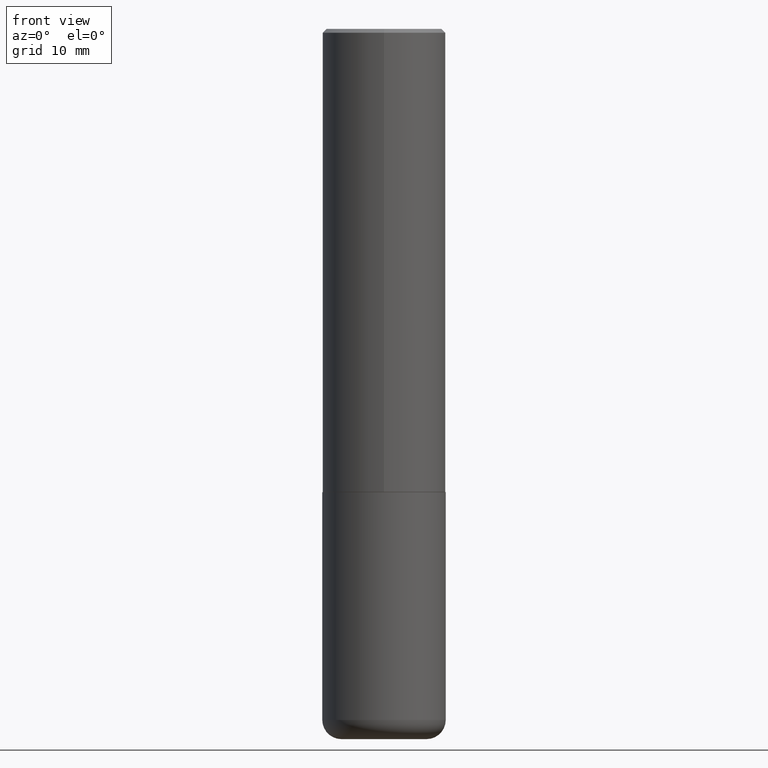
[diagram: clean part render]
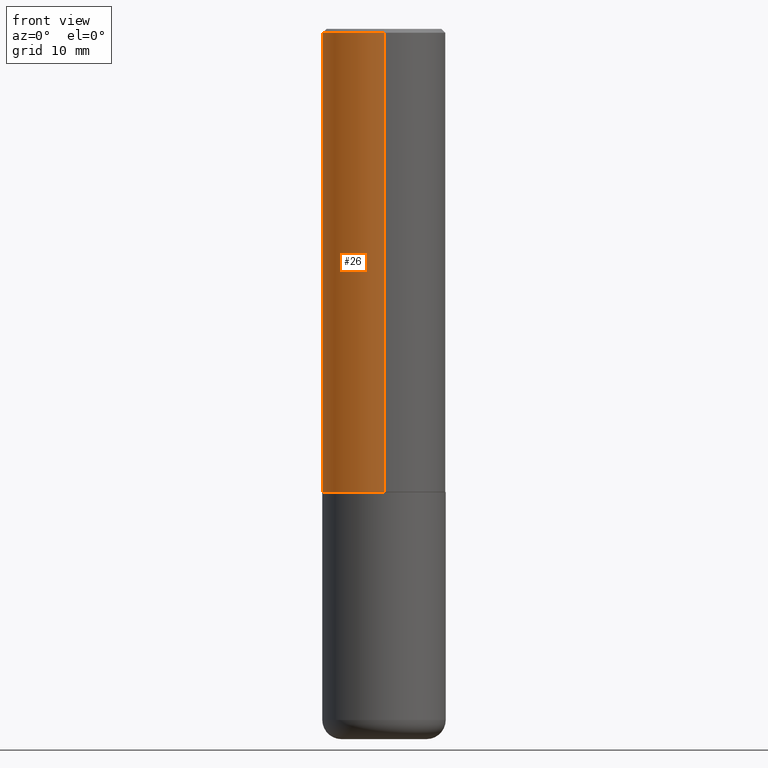
[diagram: same view with one face highlighted and labeled with its STEP entity id]
A machine part, front view. The second image highlights one B-rep face of the part: STEP entity #26.
In plain terms, the highlighted cylindrical surface (partial cylindrical patch) has radius 7.9997 mm, axis along (-0, 0, 1).
Its self-contained STEP definition (entity closure, byte-faithful):
#18 = EDGE_CURVE ( 'NONE', #411, #366, #121, .T. ) ;
#21 = VECTOR ( 'NONE', #153, 39.37007874015748143 ) ;
#23 = CARTESIAN_POINT ( 'NONE',  ( -2.199284095337233467E-15, -0.3149500000000085564, -2.361199999999998411 ) ) ;
#26 = ADVANCED_FACE ( 'NONE', ( #125 ), #254, .T. ) ;
#33 = DIRECTION ( 'NONE',  ( -2.446834136232167376E-29, 3.489526108506037109E-15, 1.000000000000000000 ) ) ;
#36 = AXIS2_PLACEMENT_3D ( 'NONE', #326, #154, #347 ) ;
#40 = EDGE_CURVE ( 'NONE', #366, #313, #224, .T. ) ;
#58 = CARTESIAN_POINT ( 'NONE',  ( 2.237854346276465567E-15, 0.3149499999999920141, -2.361200000000000632 ) ) ;
#59 = DIRECTION ( 'NONE',  ( -6.982962677686264344E-15, -1.000000000000000000, 3.489526108506037109E-15 ) ) ;
#95 = CIRCLE ( 'NONE', #221, 0.3149500000000000077 ) ;
#97 = CARTESIAN_POINT ( 'NONE',  ( 0.000000000000000000, 0.000000000000000000, 0.000000000000000000 ) ) ;
#113 = DIRECTION ( 'NONE',  ( -6.982962677686265922E-15, -1.000000000000000000, 3.483117034309591132E-15 ) ) ;
#117 = CARTESIAN_POINT ( 'NONE',  ( -2.160713844398143363E-15, -0.3149500000000000632, -0.01999999999999896999 ) ) ;
#121 = CIRCLE ( 'NONE', #36, 0.3149500000000002853 ) ;
#125 = FACE_OUTER_BOUND ( 'NONE', #143, .T. ) ;
#139 = AXIS2_PLACEMENT_3D ( 'NONE', #97, #33, #59 ) ;
#143 = EDGE_LOOP ( 'NONE', ( #147, #204, #210, #345 ) ) ;
#147 = ORIENTED_EDGE ( 'NONE', *, *, #307, .F. ) ;
#152 = CARTESIAN_POINT ( 'NONE',  ( 2.237854346276435985E-15, 0.3149500000000001743, -1.099026247873976983E-15 ) ) ;
#153 = DIRECTION ( 'NONE',  ( -2.446834136232167657E-29, 3.489526108506037109E-15, 1.000000000000000000 ) ) ;
#154 = DIRECTION ( 'NONE',  ( -2.446834136232167376E-29, 3.489526108506037109E-15, 1.000000000000000000 ) ) ;
#170 = CARTESIAN_POINT ( 'NONE',  ( 2.199284095337289871E-15, 0.3149499999999999522, -0.02000000000000116615 ) ) ;
#182 = CARTESIAN_POINT ( 'NONE',  ( -2.199284095337290265E-15, -0.3149500000000001743, 1.099026247873976983E-15 ) ) ;
#204 = ORIENTED_EDGE ( 'NONE', *, *, #18, .T. ) ;
#207 = EDGE_CURVE ( 'NONE', #277, #313, #95, .T. ) ;
#210 = ORIENTED_EDGE ( 'NONE', *, *, #40, .T. ) ;
#221 = AXIS2_PLACEMENT_3D ( 'NONE', #401, #268, #113 ) ;
#224 = LINE ( 'NONE', #182, #285 ) ;
#254 = CYLINDRICAL_SURFACE ( 'NONE', #139, 0.3149500000000001743 ) ;
#268 = DIRECTION ( 'NONE',  ( -2.446834136232167376E-29, 3.489526108506037109E-15, 1.000000000000000000 ) ) ;
#277 = VERTEX_POINT ( 'NONE', #170 ) ;
#285 = VECTOR ( 'NONE', #353, 39.37007874015748143 ) ;
#307 = EDGE_CURVE ( 'NONE', #411, #277, #408, .T. ) ;
#313 = VERTEX_POINT ( 'NONE', #117 ) ;
#326 = CARTESIAN_POINT ( 'NONE',  ( 5.777464762471393692E-29, -8.239469047404454280E-15, -2.361199999999999743 ) ) ;
#345 = ORIENTED_EDGE ( 'NONE', *, *, #207, .F. ) ;
#347 = DIRECTION ( 'NONE',  ( -6.982962677686265922E-15, -1.000000000000000000, 3.469564049740290009E-15 ) ) ;
#353 = DIRECTION ( 'NONE',  ( -2.446834136232167657E-29, 3.489526108506037109E-15, 1.000000000000000000 ) ) ;
#366 = VERTEX_POINT ( 'NONE', #23 ) ;
#401 = CARTESIAN_POINT ( 'NONE',  ( 4.893668272464352339E-31, -6.979052217012096355E-17, -0.02000000000000006981 ) ) ;
#408 = LINE ( 'NONE', #152, #21 ) ;
#411 = VERTEX_POINT ( 'NONE', #58 ) ;